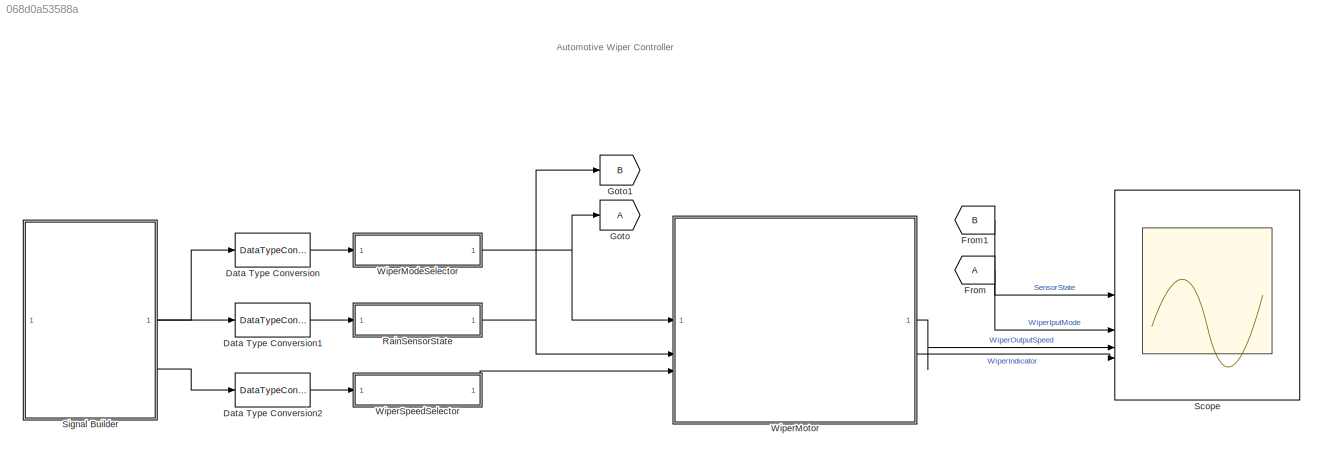
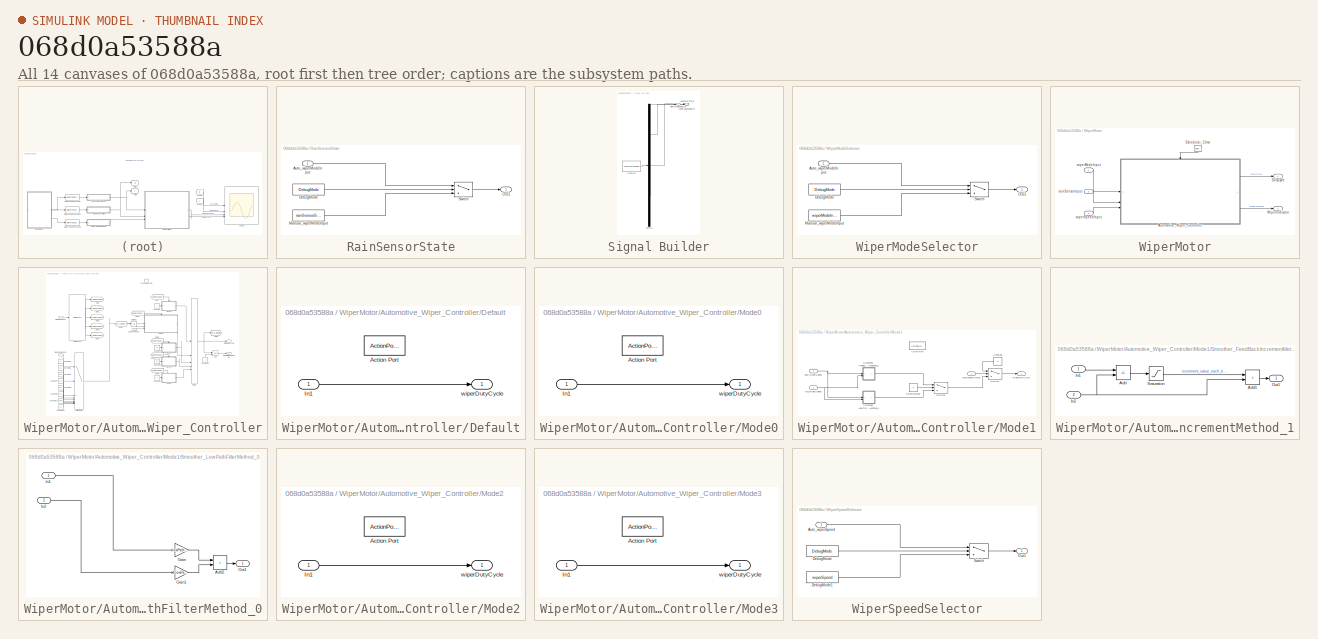
[diagram: thumbnail index - all 14 canvases of the model, root first then tree order]
MODEL slx_068d0a53588a
KIND model
CONFIG AbsTol = auto
CONFIG EnableMultiTasking = off
CONFIG FixedStep = 0.01
CONFIG MaxStep = auto
CONFIG MinStep = auto
CONFIG RelTol = 1e-3
CONFIG SampleTimeConstraint = Unconstrained
CONFIG SolverName = FixedStepAuto
CONFIG StartTime = 0.0
CONFIG StopTime = 16
WORKSPACE source: mxarray member
WORKSPACE lowPathFilterGain: Simulink.Parameter (value not decoded)
BLOCK [DataTypeConversion] Data Type Conversion
  RndMeth = Floor
  SaturateOnIntegerOverflow = off
BLOCK [DataTypeConversion] Data Type Conversion1
  RndMeth = Floor
  SaturateOnIntegerOverflow = off
BLOCK [DataTypeConversion] Data Type Conversion2
  RndMeth = Floor
  SaturateOnIntegerOverflow = off
BLOCK [From] From
BLOCK [From] From1
  GotoTag = B
BLOCK [Goto] Goto
BLOCK [Goto] Goto1
  GotoTag = B
BLOCK [SubSystem] RainSensorState
BLOCK [Inport] RainSensorState/Auto_wiperModeInput
BLOCK [Constant] RainSensorState/DebugMode
  Value = DebugMode
BLOCK [Constant] RainSensorState/Manual_wiperModeInput
  Value = rainSensorState
BLOCK [Outport] RainSensorState/Out1
BLOCK [Switch] RainSensorState/Switch
  Criteria = u2 ~= 0
  InputSameDT = off
  SaturateOnIntegerOverflow = off
BLOCK [Scope] Scope
  Floating = off
  NumInputPorts = 4
  ScopeSpecificationString = Simulink.scopes.TimeScopeBlockCfg('CurrentConfiguration', extmgr.ConfigurationSet(extmgr.Configuration('Core','General UI',true),extmgr.Configuration('Core','Source UI',true),extmgr.Configuration('Sources','WiredSimulink',true),extmgr.Configuration('Visuals','Time Domain',true,'SerializedDisplays',{struct('MinYLimReal','-0.125','MaxYLimReal','1.125','YLabelReal','','MinYLimMag','0.00000','MaxYLimM...<+3416ch>
BLOCK [SubSystem] Signal Builder
  ClipboardFcn = sigbuilder_block('clipboard');
  CloseFcn = sigbuilder_block('close');
  ContinueFcn = sigbuilder_block('continue');
  CopyFcn = sigbuilder_block('copy');
  DeleteFcn = sigbuilder_block('delete');
  LoadFcn = sigbuilder_block('load');
  MaskHideContents = on
  ModelCloseFcn = sigbuilder_block('modelClose');
  NameChangeFcn = sigbuilder_block('namechange');
  OpenFcn = sigbuilder_block('open',[889.5 261 544.5 318.75 ]);
  PauseFcn = sigbuilder_block('pause');
  PreSaveFcn = sigbuilder_block('preSave');
  StartFcn = sigbuilder_block('start');
  StopFcn = sigbuilder_block('stop');
  Tag = STV Subsys
BLOCK [Demux] Signal Builder/Demux
  DisplayOption = none
  Outputs = 3
  Tag = STV Demux
BLOCK [FromWorkspace] Signal Builder/FromWs
  OutputAfterFinalValue = Holding final value
  SampleTime = 1
  Tag = STV FromWs
  VariableName = tuvar
BLOCK [Outport] Signal Builder/WiperSpeedSelector
  Port = 3
  Tag = STV Outport
BLOCK [Outport] Signal Builder/rainSensorState
  Port = 2
  Tag = STV Outport
BLOCK [Outport] Signal Builder/wiperModeSelector
  Tag = STV Outport
BLOCK [SubSystem] WiperModeSelector
BLOCK [Inport] WiperModeSelector/Auto_wiperModeInput
BLOCK [Constant] WiperModeSelector/DebugMode
  OutDataTypeStr = uint8
  Value = DebugMode
BLOCK [Constant] WiperModeSelector/Manual_wiperModeInput
  OutDataTypeStr = uint8
  Value = wiperModeInput
BLOCK [Outport] WiperModeSelector/Out1
BLOCK [Switch] WiperModeSelector/Switch
  Criteria = u2 ~= 0
  InputSameDT = off
  SaturateOnIntegerOverflow = off
BLOCK [SubSystem] WiperMotor
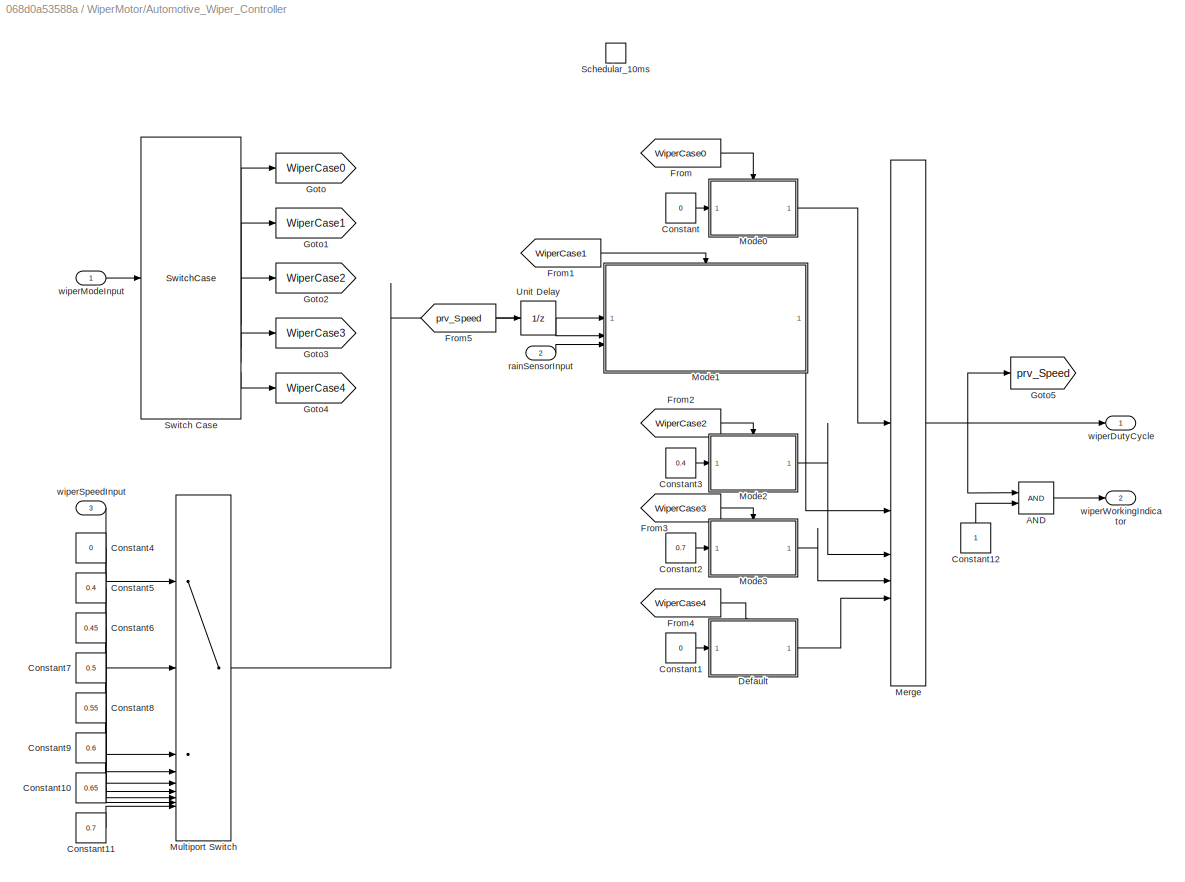
BLOCK [SubSystem] WiperMotor/Automotive_Wiper_Controller
  TreatAsAtomicUnit = on
BLOCK [Logic] WiperMotor/Automotive_Wiper_Controller/AND
  AllPortsSameDT = off
  IconShape = distinctive
  OutDataTypeStr = boolean
BLOCK [Constant] WiperMotor/Automotive_Wiper_Controller/Constant
  OutDataTypeStr = double
  Value = 0
BLOCK [Constant] WiperMotor/Automotive_Wiper_Controller/Constant1
  OutDataTypeStr = double
  Value = 0
BLOCK [Constant] WiperMotor/Automotive_Wiper_Controller/Constant10
  OutDataTypeStr = double
  Value = 0.65
BLOCK [Constant] WiperMotor/Automotive_Wiper_Controller/Constant11
  OutDataTypeStr = double
  Value = 0.7
BLOCK [Constant] WiperMotor/Automotive_Wiper_Controller/Constant12
  NameLocation = right
BLOCK [Constant] WiperMotor/Automotive_Wiper_Controller/Constant2
  OutDataTypeStr = double
  Value = 0.7
BLOCK [Constant] WiperMotor/Automotive_Wiper_Controller/Constant3
  OutDataTypeStr = double
  Value = 0.4
BLOCK [Constant] WiperMotor/Automotive_Wiper_Controller/Constant4
  OutDataTypeStr = double
  Value = 0
BLOCK [Constant] WiperMotor/Automotive_Wiper_Controller/Constant5
  OutDataTypeStr = double
  Value = 0.4
BLOCK [Constant] WiperMotor/Automotive_Wiper_Controller/Constant6
  OutDataTypeStr = double
  Value = 0.45
BLOCK [Constant] WiperMotor/Automotive_Wiper_Controller/Constant7
  OutDataTypeStr = double
  Value = 0.5
BLOCK [Constant] WiperMotor/Automotive_Wiper_Controller/Constant8
  OutDataTypeStr = double
  Value = 0.55
BLOCK [Constant] WiperMotor/Automotive_Wiper_Controller/Constant9
  OutDataTypeStr = double
  Value = 0.6
BLOCK [SubSystem] WiperMotor/Automotive_Wiper_Controller/Default
  TreatAsAtomicUnit = on
BLOCK [ActionPort] WiperMotor/Automotive_Wiper_Controller/Default/Action Port
  ActionPortLabel = default:
BLOCK [Inport] WiperMotor/Automotive_Wiper_Controller/Default/In1
BLOCK [Outport] WiperMotor/Automotive_Wiper_Controller/Default/wiperDutyCycle
BLOCK [From] WiperMotor/Automotive_Wiper_Controller/From
  GotoTag = WiperCase0
BLOCK [From] WiperMotor/Automotive_Wiper_Controller/From1
  GotoTag = WiperCase1
BLOCK [From] WiperMotor/Automotive_Wiper_Controller/From2
  GotoTag = WiperCase2
BLOCK [From] WiperMotor/Automotive_Wiper_Controller/From3
  GotoTag = WiperCase3
BLOCK [From] WiperMotor/Automotive_Wiper_Controller/From4
  GotoTag = WiperCase4
BLOCK [From] WiperMotor/Automotive_Wiper_Controller/From5
  GotoTag = prv_Speed
BLOCK [Goto] WiperMotor/Automotive_Wiper_Controller/Goto
  GotoTag = WiperCase0
BLOCK [Goto] WiperMotor/Automotive_Wiper_Controller/Goto1
  GotoTag = WiperCase1
BLOCK [Goto] WiperMotor/Automotive_Wiper_Controller/Goto2
  GotoTag = WiperCase2
BLOCK [Goto] WiperMotor/Automotive_Wiper_Controller/Goto3
  GotoTag = WiperCase3
BLOCK [Goto] WiperMotor/Automotive_Wiper_Controller/Goto4
  GotoTag = WiperCase4
BLOCK [Goto] WiperMotor/Automotive_Wiper_Controller/Goto5
  GotoTag = prv_Speed
BLOCK [Merge] WiperMotor/Automotive_Wiper_Controller/Merge
  Inputs = 5
BLOCK [SubSystem] WiperMotor/Automotive_Wiper_Controller/Mode0
  TreatAsAtomicUnit = on
BLOCK [ActionPort] WiperMotor/Automotive_Wiper_Controller/Mode0/Action Port
  ActionPortLabel = case [ 0 ]:
BLOCK [Inport] WiperMotor/Automotive_Wiper_Controller/Mode0/In1
BLOCK [Outport] WiperMotor/Automotive_Wiper_Controller/Mode0/wiperDutyCycle
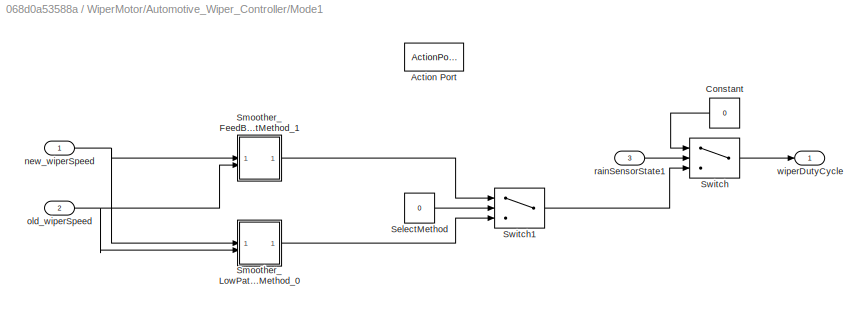
BLOCK [SubSystem] WiperMotor/Automotive_Wiper_Controller/Mode1
  TreatAsAtomicUnit = on
BLOCK [ActionPort] WiperMotor/Automotive_Wiper_Controller/Mode1/Action Port
  ActionPortLabel = case [ 1 ]:
BLOCK [Constant] WiperMotor/Automotive_Wiper_Controller/Mode1/Constant
  NameLocation = top
  OutDataTypeStr = uint8
  Value = 0
BLOCK [Constant] WiperMotor/Automotive_Wiper_Controller/Mode1/SelectMethod
  OutDataTypeStr = uint8
  Value = 0
BLOCK [SubSystem] WiperMotor/Automotive_Wiper_Controller/Mode1/Smoother_FeedBackIncrementMethod_1
BLOCK [Sum] WiperMotor/Automotive_Wiper_Controller/Mode1/Smoother_FeedBackIncrementMethod_1/Add
  IconShape = rectangular
  Inputs = +-
BLOCK [Sum] WiperMotor/Automotive_Wiper_Controller/Mode1/Smoother_FeedBackIncrementMethod_1/Add1
  IconShape = rectangular
BLOCK [Inport] WiperMotor/Automotive_Wiper_Controller/Mode1/Smoother_FeedBackIncrementMethod_1/In1
BLOCK [Inport] WiperMotor/Automotive_Wiper_Controller/Mode1/Smoother_FeedBackIncrementMethod_1/In2
  Port = 2
BLOCK [Outport] WiperMotor/Automotive_Wiper_Controller/Mode1/Smoother_FeedBackIncrementMethod_1/Out1
BLOCK [Saturate] WiperMotor/Automotive_Wiper_Controller/Mode1/Smoother_FeedBackIncrementMethod_1/Saturation
  LowerLimit = -0.01
  UpperLimit = 0.01
BLOCK [SubSystem] WiperMotor/Automotive_Wiper_Controller/Mode1/Smoother_LowPathFilterMethod_0
BLOCK [Sum] WiperMotor/Automotive_Wiper_Controller/Mode1/Smoother_LowPathFilterMethod_0/Add2
  IconShape = rectangular
BLOCK [Gain] WiperMotor/Automotive_Wiper_Controller/Mode1/Smoother_LowPathFilterMethod_0/Gain
  Gain = lowPathFilterGain
BLOCK [Gain] WiperMotor/Automotive_Wiper_Controller/Mode1/Smoother_LowPathFilterMethod_0/Gain1
  Gain = 1-lowPathFilterGain
BLOCK [Inport] WiperMotor/Automotive_Wiper_Controller/Mode1/Smoother_LowPathFilterMethod_0/In1
BLOCK [Inport] WiperMotor/Automotive_Wiper_Controller/Mode1/Smoother_LowPathFilterMethod_0/In2
  Port = 2
BLOCK [Outport] WiperMotor/Automotive_Wiper_Controller/Mode1/Smoother_LowPathFilterMethod_0/Out1
BLOCK [Switch] WiperMotor/Automotive_Wiper_Controller/Mode1/Switch
  Criteria = u2 > Threshold
  InputSameDT = off
  SaturateOnIntegerOverflow = off
BLOCK [Switch] WiperMotor/Automotive_Wiper_Controller/Mode1/Switch1
  Criteria = u2 > Threshold
  InputSameDT = off
  SaturateOnIntegerOverflow = off
BLOCK [Inport] WiperMotor/Automotive_Wiper_Controller/Mode1/new_wiperSpeed
  OutDataTypeStr = double
BLOCK [Inport] WiperMotor/Automotive_Wiper_Controller/Mode1/old_wiperSpeed
  OutDataTypeStr = double
  Port = 2
BLOCK [Inport] WiperMotor/Automotive_Wiper_Controller/Mode1/rainSensorState1
  OutDataTypeStr = uint8
  Port = 3
BLOCK [Outport] WiperMotor/Automotive_Wiper_Controller/Mode1/wiperDutyCycle
BLOCK [SubSystem] WiperMotor/Automotive_Wiper_Controller/Mode2
  TreatAsAtomicUnit = on
BLOCK [ActionPort] WiperMotor/Automotive_Wiper_Controller/Mode2/Action Port
  ActionPortLabel = case [ 2 ]:
BLOCK [Inport] WiperMotor/Automotive_Wiper_Controller/Mode2/In1
BLOCK [Outport] WiperMotor/Automotive_Wiper_Controller/Mode2/wiperDutyCycle
BLOCK [SubSystem] WiperMotor/Automotive_Wiper_Controller/Mode3
  TreatAsAtomicUnit = on
BLOCK [ActionPort] WiperMotor/Automotive_Wiper_Controller/Mode3/Action Port
  ActionPortLabel = case [ 3 ]:
BLOCK [Inport] WiperMotor/Automotive_Wiper_Controller/Mode3/In1
BLOCK [Outport] WiperMotor/Automotive_Wiper_Controller/Mode3/wiperDutyCycle
BLOCK [MultiPortSwitch] WiperMotor/Automotive_Wiper_Controller/Multiport Switch
  DataPortOrder = Zero-based contiguous
  InputSameDT = off
  Inputs = 8
  SaturateOnIntegerOverflow = off
  zeroidx = on
BLOCK [TriggerPort] WiperMotor/Automotive_Wiper_Controller/Schedular_10ms
  StatesWhenEnabling = held
  TriggerType = function-call
  VariantControl = (inherit)
BLOCK [SwitchCase] WiperMotor/Automotive_Wiper_Controller/Switch Case
  CaseConditions = {0 1 2 3}
BLOCK [UnitDelay] WiperMotor/Automotive_Wiper_Controller/Unit Delay
  HasFrameUpgradeWarning = on
  SampleTime = -1
BLOCK [Inport] WiperMotor/Automotive_Wiper_Controller/rainSensorInput
  Port = 2
BLOCK [Outport] WiperMotor/Automotive_Wiper_Controller/wiperDutyCycle
BLOCK [Inport] WiperMotor/Automotive_Wiper_Controller/wiperModeInput
BLOCK [Inport] WiperMotor/Automotive_Wiper_Controller/wiperSpeedInput
  Port = 3
BLOCK [Outport] WiperMotor/Automotive_Wiper_Controller/wiperWorkingIndicator
  Port = 2
BLOCK [Outport] WiperMotor/DutyCycle
BLOCK [Reference] WiperMotor/Schedular_10ms  REF=simulink/Ports &
Subsystems/Function-Call
Generator
  NameLocation = left
  SourceBlock = simulink/Ports &\nSubsystems/Function-Call\nGenerator
  SourceType = Function-Call Generator
BLOCK [Outport] WiperMotor/WiperIndicator
  Port = 2
BLOCK [Inport] WiperMotor/rainSensorInput
  Port = 2
BLOCK [Inport] WiperMotor/wiperModeInput
BLOCK [Inport] WiperMotor/wiperSpeedInput
  Port = 3
BLOCK [SubSystem] WiperSpeedSelector
BLOCK [Inport] WiperSpeedSelector/Auto_wiperSpeed
BLOCK [Constant] WiperSpeedSelector/DebugMode
  OutDataTypeStr = uint8
  Value = DebugMode
BLOCK [Constant] WiperSpeedSelector/DebugMode1
  OutDataTypeStr = uint8
  Value = wiperSpeed
BLOCK [Outport] WiperSpeedSelector/Out1
BLOCK [Switch] WiperSpeedSelector/Switch
  Criteria = u2 ~= 0
  InputSameDT = off
  SaturateOnIntegerOverflow = off
ANNOTATION (root): Automotive Wiper Controller
LINE Data Type Conversion1:1 -> RainSensorState:1
LINE Data Type Conversion2:1 -> WiperSpeedSelector:1
LINE Data Type Conversion:1 -> WiperModeSelector:1
LINE From1:1 -> Scope:1
LINE From:1 -> Scope:2
LINE RainSensorState/Auto_wiperModeInput:1 -> RainSensorState/Switch:1
LINE RainSensorState/DebugMode:1 -> RainSensorState/Switch:2
LINE RainSensorState/Manual_wiperModeInput:1 -> RainSensorState/Switch:3
LINE RainSensorState/Switch:1 -> RainSensorState/Out1:1
NET RainSensorState:1 -> Goto1:1, WiperMotor:2
LINE Signal Builder:1 -> Data Type Conversion:1
LINE Signal Builder:2 -> Data Type Conversion1:1
LINE Signal Builder:3 -> Data Type Conversion2:1
LINE WiperModeSelector/Auto_wiperModeInput:1 -> WiperModeSelector/Switch:1
LINE WiperModeSelector/DebugMode:1 -> WiperModeSelector/Switch:2
LINE WiperModeSelector/Manual_wiperModeInput:1 -> WiperModeSelector/Switch:3
LINE WiperModeSelector/Switch:1 -> WiperModeSelector/Out1:1
NET WiperModeSelector:1 -> Goto:1, WiperMotor:1
LINE WiperMotor/Automotive_Wiper_Controller/AND:1 -> WiperMotor/Automotive_Wiper_Controller/wiperWorkingIndicator:1
LINE WiperMotor/Automotive_Wiper_Controller/Constant10:1 -> WiperMotor/Automotive_Wiper_Controller/Multiport Switch:8
LINE WiperMotor/Automotive_Wiper_Controller/Constant11:1 -> WiperMotor/Automotive_Wiper_Controller/Multiport Switch:9
LINE WiperMotor/Automotive_Wiper_Controller/Constant12:1 -> WiperMotor/Automotive_Wiper_Controller/AND:2
LINE WiperMotor/Automotive_Wiper_Controller/Constant1:1 -> WiperMotor/Automotive_Wiper_Controller/Default:1
LINE WiperMotor/Automotive_Wiper_Controller/Constant2:1 -> WiperMotor/Automotive_Wiper_Controller/Mode3:1
LINE WiperMotor/Automotive_Wiper_Controller/Constant3:1 -> WiperMotor/Automotive_Wiper_Controller/Mode2:1
LINE WiperMotor/Automotive_Wiper_Controller/Constant4:1 -> WiperMotor/Automotive_Wiper_Controller/Multiport Switch:2
LINE WiperMotor/Automotive_Wiper_Controller/Constant5:1 -> WiperMotor/Automotive_Wiper_Controller/Multiport Switch:3
LINE WiperMotor/Automotive_Wiper_Controller/Constant6:1 -> WiperMotor/Automotive_Wiper_Controller/Multiport Switch:4
LINE WiperMotor/Automotive_Wiper_Controller/Constant7:1 -> WiperMotor/Automotive_Wiper_Controller/Multiport Switch:5
LINE WiperMotor/Automotive_Wiper_Controller/Constant8:1 -> WiperMotor/Automotive_Wiper_Controller/Multiport Switch:6
LINE WiperMotor/Automotive_Wiper_Controller/Constant9:1 -> WiperMotor/Automotive_Wiper_Controller/Multiport Switch:7
LINE WiperMotor/Automotive_Wiper_Controller/Constant:1 -> WiperMotor/Automotive_Wiper_Controller/Mode0:1
LINE WiperMotor/Automotive_Wiper_Controller/Default/In1:1 -> WiperMotor/Automotive_Wiper_Controller/Default/wiperDutyCycle:1
LINE WiperMotor/Automotive_Wiper_Controller/Default:1 -> WiperMotor/Automotive_Wiper_Controller/Merge:5
LINE WiperMotor/Automotive_Wiper_Controller/From1:1 -> WiperMotor/Automotive_Wiper_Controller/Mode1:ifaction
LINE WiperMotor/Automotive_Wiper_Controller/From2:1 -> WiperMotor/Automotive_Wiper_Controller/Mode2:ifaction
LINE WiperMotor/Automotive_Wiper_Controller/From3:1 -> WiperMotor/Automotive_Wiper_Controller/Mode3:ifaction
LINE WiperMotor/Automotive_Wiper_Controller/From4:1 -> WiperMotor/Automotive_Wiper_Controller/Default:ifaction
LINE WiperMotor/Automotive_Wiper_Controller/From5:1 -> WiperMotor/Automotive_Wiper_Controller/Unit Delay:1
LINE WiperMotor/Automotive_Wiper_Controller/From:1 -> WiperMotor/Automotive_Wiper_Controller/Mode0:ifaction
NET WiperMotor/Automotive_Wiper_Controller/Merge:1 -> WiperMotor/Automotive_Wiper_Controller/AND:1, WiperMotor/Automotive_Wiper_Controller/Goto5:1, WiperMotor/Automotive_Wiper_Controller/wiperDutyCycle:1
LINE WiperMotor/Automotive_Wiper_Controller/Mode0/In1:1 -> WiperMotor/Automotive_Wiper_Controller/Mode0/wiperDutyCycle:1
LINE WiperMotor/Automotive_Wiper_Controller/Mode0:1 -> WiperMotor/Automotive_Wiper_Controller/Merge:1
LINE WiperMotor/Automotive_Wiper_Controller/Mode1/Constant:1 -> WiperMotor/Automotive_Wiper_Controller/Mode1/Switch:1
LINE WiperMotor/Automotive_Wiper_Controller/Mode1/SelectMethod:1 -> WiperMotor/Automotive_Wiper_Controller/Mode1/Switch1:2
LINE WiperMotor/Automotive_Wiper_Controller/Mode1/Smoother_FeedBackIncrementMethod_1/Add1:1 -> WiperMotor/Automotive_Wiper_Controller/Mode1/Smoother_FeedBackIncrementMethod_1/Out1:1
LINE WiperMotor/Automotive_Wiper_Controller/Mode1/Smoother_FeedBackIncrementMethod_1/Add:1 -> WiperMotor/Automotive_Wiper_Controller/Mode1/Smoother_FeedBackIncrementMethod_1/Saturation:1
LINE WiperMotor/Automotive_Wiper_Controller/Mode1/Smoother_FeedBackIncrementMethod_1/In1:1 -> WiperMotor/Automotive_Wiper_Controller/Mode1/Smoother_FeedBackIncrementMethod_1/Add:1
NET WiperMotor/Automotive_Wiper_Controller/Mode1/Smoother_FeedBackIncrementMethod_1/In2:1 -> WiperMotor/Automotive_Wiper_Controller/Mode1/Smoother_FeedBackIncrementMethod_1/Add1:2, WiperMotor/Automotive_Wiper_Controller/Mode1/Smoother_FeedBackIncrementMethod_1/Add:2
LINE WiperMotor/Automotive_Wiper_Controller/Mode1/Smoother_FeedBackIncrementMethod_1/Saturation:1 -> WiperMotor/Automotive_Wiper_Controller/Mode1/Smoother_FeedBackIncrementMethod_1/Add1:1
LINE WiperMotor/Automotive_Wiper_Controller/Mode1/Smoother_FeedBackIncrementMethod_1:1 -> WiperMotor/Automotive_Wiper_Controller/Mode1/Switch1:1
LINE WiperMotor/Automotive_Wiper_Controller/Mode1/Smoother_LowPathFilterMethod_0/Add2:1 -> WiperMotor/Automotive_Wiper_Controller/Mode1/Smoother_LowPathFilterMethod_0/Out1:1
LINE WiperMotor/Automotive_Wiper_Controller/Mode1/Smoother_LowPathFilterMethod_0/Gain1:1 -> WiperMotor/Automotive_Wiper_Controller/Mode1/Smoother_LowPathFilterMethod_0/Add2:2
LINE WiperMotor/Automotive_Wiper_Controller/Mode1/Smoother_LowPathFilterMethod_0/Gain:1 -> WiperMotor/Automotive_Wiper_Controller/Mode1/Smoother_LowPathFilterMethod_0/Add2:1
LINE WiperMotor/Automotive_Wiper_Controller/Mode1/Smoother_LowPathFilterMethod_0/In1:1 -> WiperMotor/Automotive_Wiper_Controller/Mode1/Smoother_LowPathFilterMethod_0/Gain:1
LINE WiperMotor/Automotive_Wiper_Controller/Mode1/Smoother_LowPathFilterMethod_0/In2:1 -> WiperMotor/Automotive_Wiper_Controller/Mode1/Smoother_LowPathFilterMethod_0/Gain1:1
LINE WiperMotor/Automotive_Wiper_Controller/Mode1/Smoother_LowPathFilterMethod_0:1 -> WiperMotor/Automotive_Wiper_Controller/Mode1/Switch1:3
LINE WiperMotor/Automotive_Wiper_Controller/Mode1/Switch1:1 -> WiperMotor/Automotive_Wiper_Controller/Mode1/Switch:3
LINE WiperMotor/Automotive_Wiper_Controller/Mode1/Switch:1 -> WiperMotor/Automotive_Wiper_Controller/Mode1/wiperDutyCycle:1
NET WiperMotor/Automotive_Wiper_Controller/Mode1/new_wiperSpeed:1 -> WiperMotor/Automotive_Wiper_Controller/Mode1/Smoother_FeedBackIncrementMethod_1:1, WiperMotor/Automotive_Wiper_Controller/Mode1/Smoother_LowPathFilterMethod_0:1
NET WiperMotor/Automotive_Wiper_Controller/Mode1/old_wiperSpeed:1 -> WiperMotor/Automotive_Wiper_Controller/Mode1/Smoother_FeedBackIncrementMethod_1:2, WiperMotor/Automotive_Wiper_Controller/Mode1/Smoother_LowPathFilterMethod_0:2
LINE WiperMotor/Automotive_Wiper_Controller/Mode1/rainSensorState1:1 -> WiperMotor/Automotive_Wiper_Controller/Mode1/Switch:2
LINE WiperMotor/Automotive_Wiper_Controller/Mode1:1 -> WiperMotor/Automotive_Wiper_Controller/Merge:2
LINE WiperMotor/Automotive_Wiper_Controller/Mode2/In1:1 -> WiperMotor/Automotive_Wiper_Controller/Mode2/wiperDutyCycle:1
LINE WiperMotor/Automotive_Wiper_Controller/Mode2:1 -> WiperMotor/Automotive_Wiper_Controller/Merge:3
LINE WiperMotor/Automotive_Wiper_Controller/Mode3/In1:1 -> WiperMotor/Automotive_Wiper_Controller/Mode3/wiperDutyCycle:1
LINE WiperMotor/Automotive_Wiper_Controller/Mode3:1 -> WiperMotor/Automotive_Wiper_Controller/Merge:4
LINE WiperMotor/Automotive_Wiper_Controller/Multiport Switch:1 -> WiperMotor/Automotive_Wiper_Controller/Mode1:1
LINE WiperMotor/Automotive_Wiper_Controller/Switch Case:1 -> WiperMotor/Automotive_Wiper_Controller/Goto:1
LINE WiperMotor/Automotive_Wiper_Controller/Switch Case:2 -> WiperMotor/Automotive_Wiper_Controller/Goto1:1
LINE WiperMotor/Automotive_Wiper_Controller/Switch Case:3 -> WiperMotor/Automotive_Wiper_Controller/Goto2:1
LINE WiperMotor/Automotive_Wiper_Controller/Switch Case:4 -> WiperMotor/Automotive_Wiper_Controller/Goto3:1
LINE WiperMotor/Automotive_Wiper_Controller/Switch Case:5 -> WiperMotor/Automotive_Wiper_Controller/Goto4:1
LINE WiperMotor/Automotive_Wiper_Controller/Unit Delay:1 -> WiperMotor/Automotive_Wiper_Controller/Mode1:2
LINE WiperMotor/Automotive_Wiper_Controller/rainSensorInput:1 -> WiperMotor/Automotive_Wiper_Controller/Mode1:3
LINE WiperMotor/Automotive_Wiper_Controller/wiperModeInput:1 -> WiperMotor/Automotive_Wiper_Controller/Switch Case:1
LINE WiperMotor/Automotive_Wiper_Controller/wiperSpeedInput:1 -> WiperMotor/Automotive_Wiper_Controller/Multiport Switch:1
LINE WiperMotor/Automotive_Wiper_Controller:1 -> WiperMotor/DutyCycle:1
LINE WiperMotor/Automotive_Wiper_Controller:2 -> WiperMotor/WiperIndicator:1
LINE WiperMotor/Schedular_10ms:1 -> WiperMotor/Automotive_Wiper_Controller:trigger
LINE WiperMotor/rainSensorInput:1 -> WiperMotor/Automotive_Wiper_Controller:2
LINE WiperMotor/wiperModeInput:1 -> WiperMotor/Automotive_Wiper_Controller:1
LINE WiperMotor/wiperSpeedInput:1 -> WiperMotor/Automotive_Wiper_Controller:3
LINE WiperMotor:1 -> Scope:3
LINE WiperMotor:2 -> Scope:4
LINE WiperSpeedSelector/Auto_wiperSpeed:1 -> WiperSpeedSelector/Switch:1
LINE WiperSpeedSelector/DebugMode1:1 -> WiperSpeedSelector/Switch:3
LINE WiperSpeedSelector/DebugMode:1 -> WiperSpeedSelector/Switch:2
LINE WiperSpeedSelector/Switch:1 -> WiperSpeedSelector/Out1:1
LINE WiperSpeedSelector:1 -> WiperMotor:3
note: NET lines group one-source signal fan-out (src -> all destinations, sorted); 1:1 wires keep LINE
